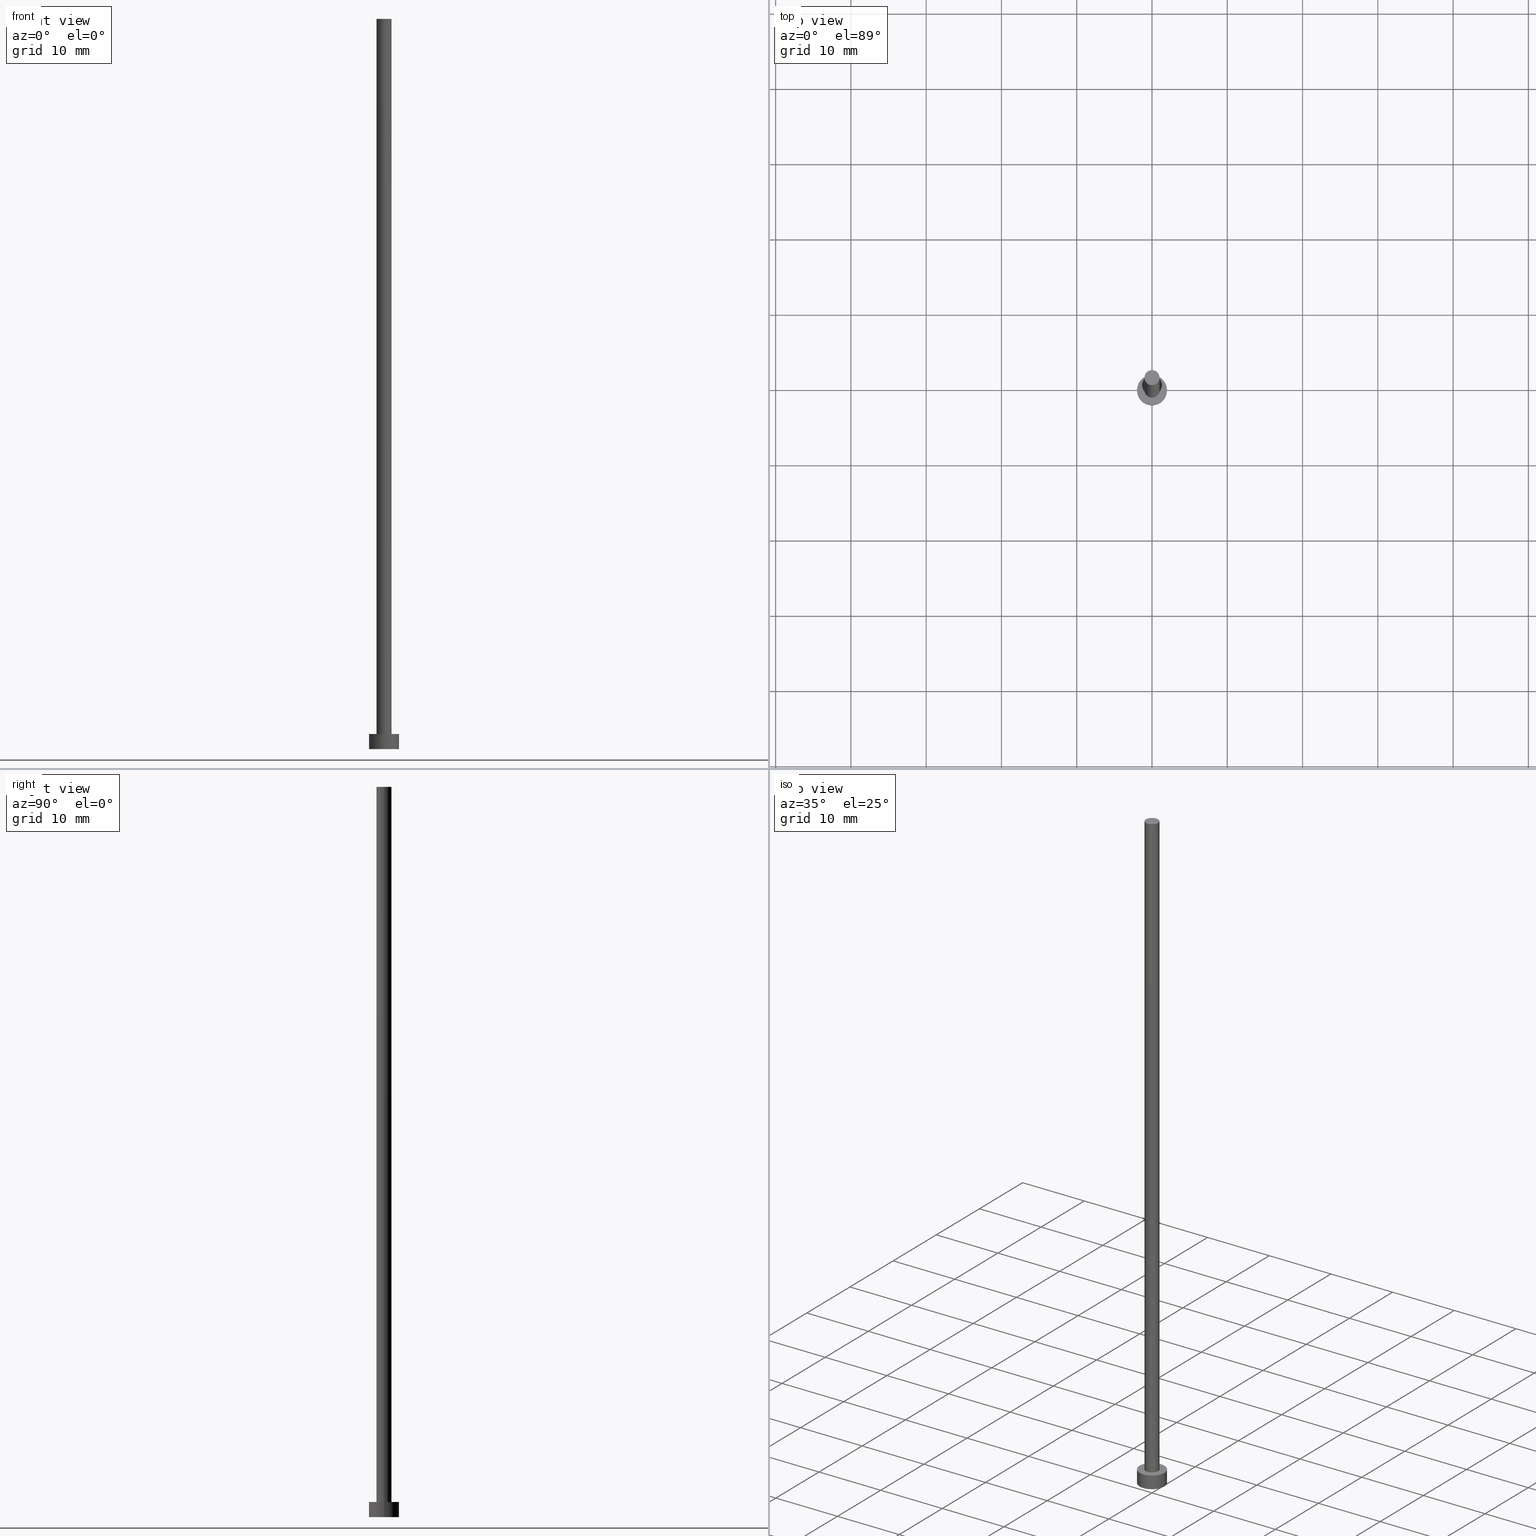
[diagram: canonical four-view strip — front | top / right | iso, engineering-drawing reading convention]
A machine part, canonical four-view strip (front | top / right | iso — engineering-drawing reading convention). The complete STEP part file that produces these views, byte-faithful:
ISO-10303-21;
HEADER;
FILE_DESCRIPTION (( 'STEP AP203' ),
    '1' );
FILE_NAME ('e1f0.STEP',
    '2024-02-19T13:42:40',
    ( '' ),
    ( '' ),
    'SwSTEP 2.0',
    'SolidWorks 2019',
    '' );
FILE_SCHEMA (( 'CONFIG_CONTROL_DESIGN' ));
ENDSEC;

DATA;
#1 = ORIENTED_EDGE ( 'NONE', *, *, #130, .F. ) ;
#2 = APPROVAL_ROLE ( '' ) ;
#3 = DIRECTION ( 'NONE',  ( -1.000000000000000000, 0.000000000000000000, 0.000000000000000000 ) ) ;
#4 = DIRECTION ( 'NONE',  ( 1.000000000000000000, 0.000000000000000000, 0.000000000000000000 ) ) ;
#5 = DIRECTION ( 'NONE',  ( -0.000000000000000000, -0.000000000000000000, -1.000000000000000000 ) ) ;
#6 = DESIGN_CONTEXT ( 'detailed design', #161, 'design' ) ;
#7 = ORIENTED_EDGE ( 'NONE', *, *, #195, .T. ) ;
#8 = DIRECTION ( 'NONE',  ( 0.000000000000000000, 0.000000000000000000, 1.000000000000000000 ) ) ;
#9 = AXIS2_PLACEMENT_3D ( 'NONE', #173, #188, #4 ) ;
#10 = FACE_OUTER_BOUND ( 'NONE', #37, .T. ) ;
#11 = DATE_AND_TIME ( #175, #105 ) ;
#12 = FACE_OUTER_BOUND ( 'NONE', #93, .T. ) ;
#13 = CARTESIAN_POINT ( 'NONE',  ( 0.000000000000000000, 0.000000000000000000, 2.000000000000000000 ) ) ;
#14 = CARTESIAN_POINT ( 'NONE',  ( -1.000000000000000000, 0.000000000000000000, 2.000000000000000000 ) ) ;
#15 = APPROVAL ( #165, 'NEUR�EN�' ) ;
#16 = CIRCLE ( 'NONE', #119, 1.000000000000000000 ) ;
#17 = ORIENTED_EDGE ( 'NONE', *, *, #89, .F. ) ;
#18 = EDGE_CURVE ( 'NONE', #153, #238, #16, .T. ) ;
#19 = DIRECTION ( 'NONE',  ( -1.000000000000000000, 0.000000000000000000, 0.000000000000000000 ) ) ;
#20 = ORIENTED_EDGE ( 'NONE', *, *, #74, .T. ) ;
#21 = LOCAL_TIME ( 14, 42, 40.00000000000000000, #244 ) ;
#22 = FACE_OUTER_BOUND ( 'NONE', #179, .T. ) ;
#23 = DIRECTION ( 'NONE',  ( -0.000000000000000000, -0.000000000000000000, -1.000000000000000000 ) ) ;
#24 = DATE_AND_TIME ( #215, #90 ) ;
#25 = DIRECTION ( 'NONE',  ( -0.000000000000000000, -0.000000000000000000, -1.000000000000000000 ) ) ;
#26 = APPROVAL_PERSON_ORGANIZATION ( #156, #110, #250 ) ;
#27 = EDGE_CURVE ( 'NONE', #187, #65, #75, .T. ) ;
#28 = PERSON_AND_ORGANIZATION_ROLE ( 'design_supplier' ) ;
#29 = COORDINATED_UNIVERSAL_TIME_OFFSET ( 1, 0, .AHEAD. ) ;
#30 = CARTESIAN_POINT ( 'NONE',  ( 2.000000000000000000, 2.449293598294706414E-16, 2.000000000000000000 ) ) ;
#31 = DIRECTION ( 'NONE',  ( -1.000000000000000000, 0.000000000000000000, 0.000000000000000000 ) ) ;
#32 = SHAPE_DEFINITION_REPRESENTATION ( #46, #92 ) ;
#33 = CIRCLE ( 'NONE', #53, 2.000000000000000000 ) ;
#34 = ORIENTED_EDGE ( 'NONE', *, *, #195, .F. ) ;
#35 = CARTESIAN_POINT ( 'NONE',  ( 0.000000000000000000, 0.000000000000000000, 0.000000000000000000 ) ) ;
#36 = DIRECTION ( 'NONE',  ( 1.000000000000000000, 0.000000000000000000, 0.000000000000000000 ) ) ;
#37 = EDGE_LOOP ( 'NONE', ( #178, #134, #170, #39 ) ) ;
#38 = CC_DESIGN_PERSON_AND_ORGANIZATION_ASSIGNMENT ( #101, #59, ( #167 ) ) ;
#39 = ORIENTED_EDGE ( 'NONE', *, *, #130, .T. ) ;
#40 = CARTESIAN_POINT ( 'NONE',  ( -1.000000000000000000, 0.000000000000000000, 97.00000000000000000 ) ) ;
#41 = DIRECTION ( 'NONE',  ( 1.000000000000000000, 0.000000000000000000, 0.000000000000000000 ) ) ;
#42 = VERTEX_POINT ( 'NONE', #30 ) ;
#43 = EDGE_CURVE ( 'NONE', #42, #65, #242, .T. ) ;
#44 = VECTOR ( 'NONE', #233, 1000.000000000000000 ) ;
#45 = ORIENTED_EDGE ( 'NONE', *, *, #157, .T. ) ;
#46 = PRODUCT_DEFINITION_SHAPE ( 'NONE', 'NONE',  #199 ) ;
#47 = DIRECTION ( 'NONE',  ( 1.000000000000000000, 0.000000000000000000, 0.000000000000000000 ) ) ;
#48 = DIRECTION ( 'NONE',  ( -0.000000000000000000, -0.000000000000000000, -1.000000000000000000 ) ) ;
#49 = ORIENTED_EDGE ( 'NONE', *, *, #18, .T. ) ;
#50 = CYLINDRICAL_SURFACE ( 'NONE', #138, 2.000000000000000000 ) ;
#51 = DIRECTION ( 'NONE',  ( -1.000000000000000000, 0.000000000000000000, 0.000000000000000000 ) ) ;
#52 = APPROVAL_STATUS ( 'not_yet_approved' ) ;
#53 = AXIS2_PLACEMENT_3D ( 'NONE', #193, #73, #226 ) ;
#54 = AXIS2_PLACEMENT_3D ( 'NONE', #135, #227, #51 ) ;
#55 = ORIENTED_EDGE ( 'NONE', *, *, #157, .F. ) ;
#56 = CYLINDRICAL_SURFACE ( 'NONE', #54, 2.000000000000000000 ) ;
#57 = MECHANICAL_CONTEXT ( 'NONE', #79, 'mechanical' ) ;
#58 = CARTESIAN_POINT ( 'NONE',  ( 0.000000000000000000, 0.000000000000000000, 2.000000000000000000 ) ) ;
#59 = PERSON_AND_ORGANIZATION_ROLE ( 'design_owner' ) ;
#60 = CC_DESIGN_DATE_AND_TIME_ASSIGNMENT ( #192, #185, ( #199 ) ) ;
#61 = MANIFOLD_SOLID_BREP ( 'P�idat vysunut�m3', #109 ) ;
#62 = ADVANCED_FACE ( 'NONE', ( #10 ), #86, .T. ) ;
#63 = COORDINATED_UNIVERSAL_TIME_OFFSET ( 1, 0, .AHEAD. ) ;
#64 = PERSON_AND_ORGANIZATION ( #239, #139 ) ;
#65 = VERTEX_POINT ( 'NONE', #82 ) ;
#66 = APPROVAL_DATE_TIME ( #24, #110 ) ;
#67 = ORIENTED_EDGE ( 'NONE', *, *, #253, .T. ) ;
#68 = CARTESIAN_POINT ( 'NONE',  ( 0.000000000000000000, 0.000000000000000000, 2.000000000000000000 ) ) ;
#69 = DATE_AND_TIME ( #146, #117 ) ;
#70 = CARTESIAN_POINT ( 'NONE',  ( -2.000000000000000000, 0.000000000000000000, 2.000000000000000000 ) ) ;
#71 = COORDINATED_UNIVERSAL_TIME_OFFSET ( 1, 0, .AHEAD. ) ;
#72 = CIRCLE ( 'NONE', #232, 1.000000000000000000 ) ;
#73 = DIRECTION ( 'NONE',  ( 0.000000000000000000, 0.000000000000000000, 1.000000000000000000 ) ) ;
#74 = EDGE_CURVE ( 'NONE', #42, #189, #33, .T. ) ;
#75 = CIRCLE ( 'NONE', #213, 2.000000000000000000 ) ;
#76 = SECURITY_CLASSIFICATION ( '', '', #106 ) ;
#77 = APPLICATION_PROTOCOL_DEFINITION ( 'international standard', 'config_control_design', 1994, #79 ) ;
#78 = CIRCLE ( 'NONE', #201, 2.000000000000000000 ) ;
#79 = APPLICATION_CONTEXT ( 'configuration controlled 3d designs of mechanical parts and assemblies' ) ;
#80 = DIRECTION ( 'NONE',  ( 0.000000000000000000, 0.000000000000000000, 1.000000000000000000 ) ) ;
#81 = ADVANCED_FACE ( 'NONE', ( #12 ), #154, .T. ) ;
#82 = CARTESIAN_POINT ( 'NONE',  ( 2.000000000000000000, 2.449293598294706414E-16, 0.000000000000000000 ) ) ;
#83 = CIRCLE ( 'NONE', #9, 1.000000000000000000 ) ;
#84 = DIRECTION ( 'NONE',  ( 0.000000000000000000, 0.000000000000000000, 1.000000000000000000 ) ) ;
#85 = PRODUCT_RELATED_PRODUCT_CATEGORY ( 'detail', '', ( #167 ) ) ;
#86 = CYLINDRICAL_SURFACE ( 'NONE', #159, 1.000000000000000000 ) ;
#87 = DIRECTION ( 'NONE',  ( 1.000000000000000000, 0.000000000000000000, -0.000000000000000000 ) ) ;
#88 = APPROVAL_ROLE ( '' ) ;
#89 = EDGE_CURVE ( 'NONE', #107, #238, #158, .T. ) ;
#90 = LOCAL_TIME ( 14, 42, 40.00000000000000000, #205 ) ;
#91 = DATE_TIME_ROLE ( 'classification_date' ) ;
#92 = ADVANCED_BREP_SHAPE_REPRESENTATION ( 'e1f0', ( #61, #100 ), #124 ) ;
#93 = EDGE_LOOP ( 'NONE', ( #34, #204, #49, #17 ) ) ;
#94 =( LENGTH_UNIT ( ) NAMED_UNIT ( * ) SI_UNIT ( .MILLI., .METRE. ) );
#95 = APPROVAL_STATUS ( 'not_yet_approved' ) ;
#96 = AXIS2_PLACEMENT_3D ( 'NONE', #13, #248, #36 ) ;
#97 = ORIENTED_EDGE ( 'NONE', *, *, #43, .T. ) ;
#98 = ORIENTED_EDGE ( 'NONE', *, *, #122, .T. ) ;
#99 = CARTESIAN_POINT ( 'NONE',  ( 0.000000000000000000, 0.000000000000000000, 97.00000000000000000 ) ) ;
#100 = AXIS2_PLACEMENT_3D ( 'NONE', #141, #229, #254 ) ;
#101 = PERSON_AND_ORGANIZATION ( #239, #139 ) ;
#102 = DIRECTION ( 'NONE',  ( 0.000000000000000000, 0.000000000000000000, 1.000000000000000000 ) ) ;
#103 = ORIENTED_EDGE ( 'NONE', *, *, #166, .T. ) ;
#104 = PERSON_AND_ORGANIZATION_ROLE ( 'creator' ) ;
#105 = LOCAL_TIME ( 14, 42, 40.00000000000000000, #71 ) ;
#106 = SECURITY_CLASSIFICATION_LEVEL ( 'unclassified' ) ;
#107 = VERTEX_POINT ( 'NONE', #40 ) ;
#108 = ORIENTED_EDGE ( 'NONE', *, *, #74, .F. ) ;
#109 = CLOSED_SHELL ( 'NONE', ( #81, #207, #231, #245, #225, #62, #113 ) ) ;
#110 = APPROVAL ( #95, 'NEUR�EN�' ) ;
#111 = ORIENTED_EDGE ( 'NONE', *, *, #43, .F. ) ;
#112 = DIRECTION ( 'NONE',  ( 0.000000000000000000, 0.000000000000000000, 1.000000000000000000 ) ) ;
#113 = ADVANCED_FACE ( 'NONE', ( #22 ), #197, .T. ) ;
#114 = DIRECTION ( 'NONE',  ( -0.000000000000000000, -0.000000000000000000, -1.000000000000000000 ) ) ;
#115 = CARTESIAN_POINT ( 'NONE',  ( 0.000000000000000000, 0.000000000000000000, 2.000000000000000000 ) ) ;
#116 = FACE_OUTER_BOUND ( 'NONE', #211, .T. ) ;
#117 = LOCAL_TIME ( 14, 42, 40.00000000000000000, #63 ) ;
#118 = DIRECTION ( 'NONE',  ( 0.000000000000000000, 0.000000000000000000, 1.000000000000000000 ) ) ;
#119 = AXIS2_PLACEMENT_3D ( 'NONE', #220, #84, #147 ) ;
#120 = CC_DESIGN_APPROVAL ( #163, ( #76 ) ) ;
#121 = EDGE_LOOP ( 'NONE', ( #228, #55 ) ) ;
#122 = EDGE_CURVE ( 'NONE', #189, #187, #145, .T. ) ;
#123 = CARTESIAN_POINT ( 'NONE',  ( -2.000000000000000000, 0.000000000000000000, 2.000000000000000000 ) ) ;
#124 =( GEOMETRIC_REPRESENTATION_CONTEXT ( 3 ) GLOBAL_UNCERTAINTY_ASSIGNED_CONTEXT ( ( #191 ) ) GLOBAL_UNIT_ASSIGNED_CONTEXT ( ( #94, #252, #183 ) ) REPRESENTATION_CONTEXT ( 'NONE', 'WORKASPACE' ) );
#125 = DIRECTION ( 'NONE',  ( 0.000000000000000000, 0.000000000000000000, 1.000000000000000000 ) ) ;
#126 = PRODUCT_DEFINITION_FORMATION_WITH_SPECIFIED_SOURCE ( 'LIBOVOLN�', '', #167, .NOT_KNOWN. ) ;
#127 = ORIENTED_EDGE ( 'NONE', *, *, #18, .F. ) ;
#128 = PLANE ( 'NONE',  #219 ) ;
#129 = DIRECTION ( 'NONE',  ( -0.000000000000000000, -0.000000000000000000, -1.000000000000000000 ) ) ;
#130 = EDGE_CURVE ( 'NONE', #238, #153, #196, .T. ) ;
#131 = CC_DESIGN_APPROVAL ( #15, ( #126 ) ) ;
#132 = APPROVAL_DATE_TIME ( #176, #163 ) ;
#133 = LOCAL_TIME ( 14, 42, 40.00000000000000000, #29 ) ;
#134 = ORIENTED_EDGE ( 'NONE', *, *, #166, .F. ) ;
#135 = CARTESIAN_POINT ( 'NONE',  ( 0.000000000000000000, 0.000000000000000000, 2.000000000000000000 ) ) ;
#136 = CC_DESIGN_PERSON_AND_ORGANIZATION_ASSIGNMENT ( #203, #28, ( #126 ) ) ;
#137 = AXIS2_PLACEMENT_3D ( 'NONE', #58, #80, #140 ) ;
#138 = AXIS2_PLACEMENT_3D ( 'NONE', #68, #5, #31 ) ;
#139 = ORGANIZATION ( 'NEUR�EN�', 'NEUR�EN�', '' ) ;
#140 = DIRECTION ( 'NONE',  ( 1.000000000000000000, 0.000000000000000000, 0.000000000000000000 ) ) ;
#141 = CARTESIAN_POINT ( 'NONE',  ( 0.000000000000000000, 0.000000000000000000, 0.000000000000000000 ) ) ;
#142 = APPLICATION_PROTOCOL_DEFINITION ( 'international standard', 'config_control_design', 1994, #161 ) ;
#143 = CC_DESIGN_APPROVAL ( #110, ( #199 ) ) ;
#144 = EDGE_LOOP ( 'NONE', ( #108, #97, #45, #236 ) ) ;
#145 = LINE ( 'NONE', #123, #44 ) ;
#146 = CALENDAR_DATE ( 2024, 19, 2 ) ;
#147 = DIRECTION ( 'NONE',  ( 1.000000000000000000, 0.000000000000000000, 0.000000000000000000 ) ) ;
#148 = PERSON_AND_ORGANIZATION ( #239, #139 ) ;
#149 = CARTESIAN_POINT ( 'NONE',  ( 0.000000000000000000, 0.000000000000000000, 0.000000000000000000 ) ) ;
#150 = FACE_OUTER_BOUND ( 'NONE', #121, .T. ) ;
#151 = APPROVAL_DATE_TIME ( #69, #15 ) ;
#152 = CARTESIAN_POINT ( 'NONE',  ( 2.000000000000000000, 2.449293598294706414E-16, 2.000000000000000000 ) ) ;
#153 = VERTEX_POINT ( 'NONE', #214 ) ;
#154 = CYLINDRICAL_SURFACE ( 'NONE', #246, 1.000000000000000000 ) ;
#155 = PERSON_AND_ORGANIZATION ( #239, #139 ) ;
#156 = PERSON_AND_ORGANIZATION ( #239, #139 ) ;
#157 = EDGE_CURVE ( 'NONE', #65, #187, #78, .T. ) ;
#158 = LINE ( 'NONE', #180, #198 ) ;
#159 = AXIS2_PLACEMENT_3D ( 'NONE', #174, #25, #3 ) ;
#160 = APPROVAL_PERSON_ORGANIZATION ( #64, #15, #2 ) ;
#161 = APPLICATION_CONTEXT ( 'configuration controlled 3d designs of mechanical parts and assemblies' ) ;
#162 = DIRECTION ( 'NONE',  ( 1.000000000000000000, 0.000000000000000000, -0.000000000000000000 ) ) ;
#163 = APPROVAL ( #52, 'NEUR�EN�' ) ;
#164 = EDGE_LOOP ( 'NONE', ( #1, #127 ) ) ;
#165 = APPROVAL_STATUS ( 'not_yet_approved' ) ;
#166 = EDGE_CURVE ( 'NONE', #107, #168, #83, .T. ) ;
#167 = PRODUCT ( 'e1f0', 'e1f0', '', ( #57 ) ) ;
#168 = VERTEX_POINT ( 'NONE', #169 ) ;
#169 = CARTESIAN_POINT ( 'NONE',  ( 1.000000000000000000, 1.224646799147353207E-16, 97.00000000000000000 ) ) ;
#170 = ORIENTED_EDGE ( 'NONE', *, *, #89, .T. ) ;
#171 = DIRECTION ( 'NONE',  ( 1.000000000000000000, 0.000000000000000000, 0.000000000000000000 ) ) ;
#172 = PERSON_AND_ORGANIZATION ( #239, #139 ) ;
#173 = CARTESIAN_POINT ( 'NONE',  ( 0.000000000000000000, 0.000000000000000000, 97.00000000000000000 ) ) ;
#174 = CARTESIAN_POINT ( 'NONE',  ( 0.000000000000000000, 0.000000000000000000, 97.00000000000000000 ) ) ;
#175 = CALENDAR_DATE ( 2024, 19, 2 ) ;
#176 = DATE_AND_TIME ( #208, #21 ) ;
#177 = FACE_OUTER_BOUND ( 'NONE', #184, .T. ) ;
#178 = ORIENTED_EDGE ( 'NONE', *, *, #200, .F. ) ;
#179 = EDGE_LOOP ( 'NONE', ( #103, #7 ) ) ;
#180 = CARTESIAN_POINT ( 'NONE',  ( -1.000000000000000000, 0.000000000000000000, 97.00000000000000000 ) ) ;
#181 = DIRECTION ( 'NONE',  ( 0.000000000000000000, 0.000000000000000000, 1.000000000000000000 ) ) ;
#182 = CC_DESIGN_PERSON_AND_ORGANIZATION_ASSIGNMENT ( #148, #218, ( #126 ) ) ;
#183 =( NAMED_UNIT ( * ) SI_UNIT ( $, .STERADIAN. ) SOLID_ANGLE_UNIT ( ) );
#184 = EDGE_LOOP ( 'NONE', ( #111, #249, #98, #216 ) ) ;
#185 = DATE_TIME_ROLE ( 'creation_date' ) ;
#186 = AXIS2_PLACEMENT_3D ( 'NONE', #99, #181, #162 ) ;
#187 = VERTEX_POINT ( 'NONE', #243 ) ;
#188 = DIRECTION ( 'NONE',  ( 0.000000000000000000, 0.000000000000000000, 1.000000000000000000 ) ) ;
#189 = VERTEX_POINT ( 'NONE', #70 ) ;
#190 = CARTESIAN_POINT ( 'NONE',  ( 0.000000000000000000, 0.000000000000000000, 97.00000000000000000 ) ) ;
#191 = UNCERTAINTY_MEASURE_WITH_UNIT (LENGTH_MEASURE( 1.000000000000000082E-05 ), #94, 'distance_accuracy_value', 'NONE');
#192 = DATE_AND_TIME ( #237, #133 ) ;
#193 = CARTESIAN_POINT ( 'NONE',  ( 0.000000000000000000, 0.000000000000000000, 2.000000000000000000 ) ) ;
#194 = PERSON_AND_ORGANIZATION ( #239, #139 ) ;
#195 = EDGE_CURVE ( 'NONE', #168, #107, #72, .T. ) ;
#196 = CIRCLE ( 'NONE', #137, 1.000000000000000000 ) ;
#197 = PLANE ( 'NONE',  #186 ) ;
#198 = VECTOR ( 'NONE', #23, 1000.000000000000000 ) ;
#199 = PRODUCT_DEFINITION ( 'NEZN�M�', '', #126, #6 ) ;
#200 = EDGE_CURVE ( 'NONE', #168, #153, #221, .T. ) ;
#201 = AXIS2_PLACEMENT_3D ( 'NONE', #255, #102, #41 ) ;
#202 = VECTOR ( 'NONE', #48, 1000.000000000000000 ) ;
#203 = PERSON_AND_ORGANIZATION ( #239, #139 ) ;
#204 = ORIENTED_EDGE ( 'NONE', *, *, #200, .T. ) ;
#205 = COORDINATED_UNIVERSAL_TIME_OFFSET ( 1, 0, .AHEAD. ) ;
#206 = CARTESIAN_POINT ( 'NONE',  ( 0.000000000000000000, 0.000000000000000000, 97.00000000000000000 ) ) ;
#207 = ADVANCED_FACE ( 'NONE', ( #241 ), #50, .T. ) ;
#208 = CALENDAR_DATE ( 2024, 19, 2 ) ;
#209 = PLANE ( 'NONE',  #235 ) ;
#210 = CIRCLE ( 'NONE', #96, 2.000000000000000000 ) ;
#211 = EDGE_LOOP ( 'NONE', ( #67, #20 ) ) ;
#212 = FACE_BOUND ( 'NONE', #164, .T. ) ;
#213 = AXIS2_PLACEMENT_3D ( 'NONE', #149, #125, #47 ) ;
#214 = CARTESIAN_POINT ( 'NONE',  ( 1.000000000000000000, 1.224646799147353207E-16, 2.000000000000000000 ) ) ;
#215 = CALENDAR_DATE ( 2024, 19, 2 ) ;
#216 = ORIENTED_EDGE ( 'NONE', *, *, #27, .T. ) ;
#217 = CARTESIAN_POINT ( 'NONE',  ( 1.000000000000000000, 1.224646799147353207E-16, 97.00000000000000000 ) ) ;
#218 = PERSON_AND_ORGANIZATION_ROLE ( 'creator' ) ;
#219 = AXIS2_PLACEMENT_3D ( 'NONE', #35, #112, #87 ) ;
#220 = CARTESIAN_POINT ( 'NONE',  ( 0.000000000000000000, 0.000000000000000000, 2.000000000000000000 ) ) ;
#221 = LINE ( 'NONE', #217, #202 ) ;
#222 = CC_DESIGN_PERSON_AND_ORGANIZATION_ASSIGNMENT ( #194, #223, ( #76 ) ) ;
#223 = PERSON_AND_ORGANIZATION_ROLE ( 'classification_officer' ) ;
#224 = APPROVAL_PERSON_ORGANIZATION ( #155, #163, #88 ) ;
#225 = ADVANCED_FACE ( 'NONE', ( #150 ), #128, .F. ) ;
#226 = DIRECTION ( 'NONE',  ( 1.000000000000000000, 0.000000000000000000, 0.000000000000000000 ) ) ;
#227 = DIRECTION ( 'NONE',  ( -0.000000000000000000, -0.000000000000000000, -1.000000000000000000 ) ) ;
#228 = ORIENTED_EDGE ( 'NONE', *, *, #27, .F. ) ;
#229 = DIRECTION ( 'NONE',  ( 0.000000000000000000, 0.000000000000000000, 1.000000000000000000 ) ) ;
#230 = CC_DESIGN_PERSON_AND_ORGANIZATION_ASSIGNMENT ( #172, #104, ( #199 ) ) ;
#231 = ADVANCED_FACE ( 'NONE', ( #177 ), #56, .T. ) ;
#232 = AXIS2_PLACEMENT_3D ( 'NONE', #190, #8, #171 ) ;
#233 = DIRECTION ( 'NONE',  ( -0.000000000000000000, -0.000000000000000000, -1.000000000000000000 ) ) ;
#234 = VECTOR ( 'NONE', #129, 1000.000000000000000 ) ;
#235 = AXIS2_PLACEMENT_3D ( 'NONE', #115, #118, #247 ) ;
#236 = ORIENTED_EDGE ( 'NONE', *, *, #122, .F. ) ;
#237 = CALENDAR_DATE ( 2024, 19, 2 ) ;
#238 = VERTEX_POINT ( 'NONE', #14 ) ;
#239 = PERSON ( 'NEUR�EN�', 'NEUR�EN�', 'NEUR�EN�', ('NEUR�EN�'), ('NEUR�EN�'), ('NEUR�EN�') ) ;
#240 = CC_DESIGN_SECURITY_CLASSIFICATION ( #76, ( #126 ) ) ;
#241 = FACE_OUTER_BOUND ( 'NONE', #144, .T. ) ;
#242 = LINE ( 'NONE', #152, #234 ) ;
#243 = CARTESIAN_POINT ( 'NONE',  ( -2.000000000000000000, 0.000000000000000000, 0.000000000000000000 ) ) ;
#244 = COORDINATED_UNIVERSAL_TIME_OFFSET ( 1, 0, .AHEAD. ) ;
#245 = ADVANCED_FACE ( 'NONE', ( #212, #116 ), #209, .T. ) ;
#246 = AXIS2_PLACEMENT_3D ( 'NONE', #206, #114, #19 ) ;
#247 = DIRECTION ( 'NONE',  ( 1.000000000000000000, 0.000000000000000000, -0.000000000000000000 ) ) ;
#248 = DIRECTION ( 'NONE',  ( 0.000000000000000000, 0.000000000000000000, 1.000000000000000000 ) ) ;
#249 = ORIENTED_EDGE ( 'NONE', *, *, #253, .F. ) ;
#250 = APPROVAL_ROLE ( '' ) ;
#251 = CC_DESIGN_DATE_AND_TIME_ASSIGNMENT ( #11, #91, ( #76 ) ) ;
#252 =( NAMED_UNIT ( * ) PLANE_ANGLE_UNIT ( ) SI_UNIT ( $, .RADIAN. ) );
#253 = EDGE_CURVE ( 'NONE', #189, #42, #210, .T. ) ;
#254 = DIRECTION ( 'NONE',  ( 1.000000000000000000, 0.000000000000000000, 0.000000000000000000 ) ) ;
#255 = CARTESIAN_POINT ( 'NONE',  ( 0.000000000000000000, 0.000000000000000000, 0.000000000000000000 ) ) ;
ENDSEC;
END-ISO-10303-21;
